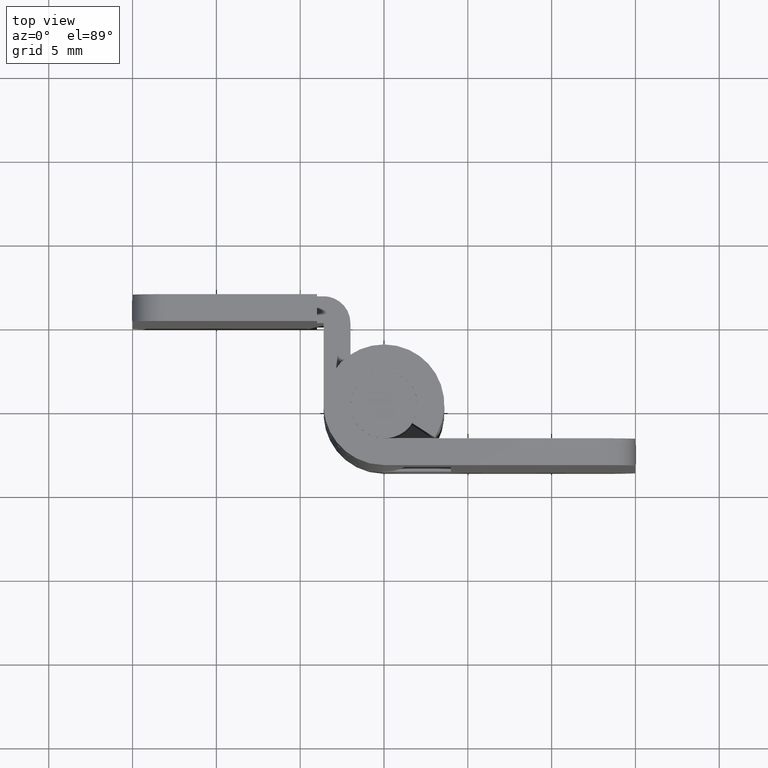
[diagram: clean part render]
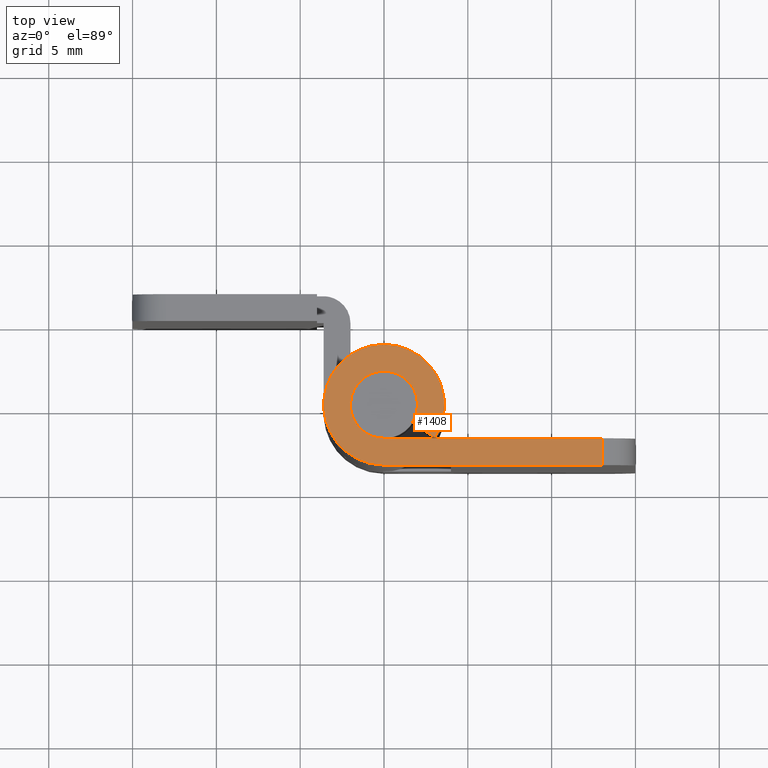
[diagram: same view with one face highlighted and labeled with its STEP entity id]
A machine part, top view. The second image highlights one B-rep face of the part: STEP entity #1408.
In plain terms, the highlighted face is a freeform B-spline surface patch.
Its self-contained STEP definition (entity closure, byte-faithful):
#987=CARTESIAN_POINT('',(13.000006999999901,-3.599998000000000,30.0));
#988=VERTEX_POINT('',#987);
#1009=CARTESIAN_POINT('',(13.000006999999901,-2.0,30.0));
#1010=VERTEX_POINT('',#1009);
#1024=CARTESIAN_POINT('',(13.000006999999901,-3.599998000000000,30.0));
#1025=CARTESIAN_POINT('',(13.000006999999901,-2.0,30.0));
#1026=QUASI_UNIFORM_CURVE('',1,(#1024,#1025),.UNSPECIFIED.,.F.,.U.);
#1027=EDGE_CURVE('',#988,#1010,#1026,.T.);
#1339=CARTESIAN_POINT('',(-4.428765128740398,-3.959562787377455,30.0));
#1340=CARTESIAN_POINT('',(13.829157242606650,-3.959562787377455,30.0));
#1341=CARTESIAN_POINT('',(-4.428765128740398,3.958018878716435,30.0));
#1342=CARTESIAN_POINT('',(13.829157242606650,3.958018878716435,30.0));
#1343=B_SPLINE_SURFACE_WITH_KNOTS('',1,1,((#1339,#1341),(#1340,#1342)),.UNSPECIFIED.,.F.,.F.,.U.,(2,2),(2,2),(0.0,18.257922371347050),(0.0,7.917581666093890),.UNSPECIFIED.);
#1344=CARTESIAN_POINT('',(-0.000000188495562,-3.600000000000000,30.0));
#1345=VERTEX_POINT('',#1344);
#1346=CARTESIAN_POINT('',(-0.000000188495562,-3.600000000000000,30.0));
#1347=CARTESIAN_POINT('',(13.000006999999901,-3.599998000000000,30.0));
#1348=QUASI_UNIFORM_CURVE('',1,(#1346,#1347),.UNSPECIFIED.,.F.,.U.);
#1349=EDGE_CURVE('',#1345,#988,#1348,.T.);
#1350=ORIENTED_EDGE('',*,*,#1349,.T.);
#1351=ORIENTED_EDGE('',*,*,#1027,.T.);
#1352=CARTESIAN_POINT('',(0.0,-2.0,30.0));
#1353=VERTEX_POINT('',#1352);
#1354=CARTESIAN_POINT('',(13.000006999999901,-2.0,30.0));
#1355=CARTESIAN_POINT('',(0.0,-2.0,30.0));
#1356=QUASI_UNIFORM_CURVE('',1,(#1354,#1355),.UNSPECIFIED.,.F.,.U.);
#1357=EDGE_CURVE('',#1010,#1353,#1356,.T.);
#1358=ORIENTED_EDGE('',*,*,#1357,.T.);
#1359=CARTESIAN_POINT('',(1.681186750152660,-1.083333333333342,30.0));
#1360=VERTEX_POINT('',#1359);
#1361=CARTESIAN_POINT('',(0.0,-2.0,30.0));
#1362=CARTESIAN_POINT('',(-1.554136556548025,-2.000000000000000,30.0));
#1363=CARTESIAN_POINT('',(-1.938025359003882,-0.494021971027477,30.0));
#1364=CARTESIAN_POINT('',(-2.321914161459738,1.011956057945045,30.0));
#1365=CARTESIAN_POINT('',(-0.957427107756332,1.755942292142126,30.0));
#1366=CARTESIAN_POINT('',(0.407059945947073,2.499928526339207,30.0));
#1367=CARTESIAN_POINT('',(1.465035332114961,1.361496043202038,30.0));
#1368=CARTESIAN_POINT('',(2.523010718282850,0.223063560064869,30.0));
#1369=CARTESIAN_POINT('',(1.681186750152662,-1.083333333333343,30.0));
#1377=(BOUNDED_CURVE()B_SPLINE_CURVE(2,(#1361,#1362,#1363,#1364,#1365,#1366,#1367,#1368,#1369),.UNSPECIFIED.,.F.,.U.)B_SPLINE_CURVE_WITH_KNOTS((3,2,2,2,3),(0.0,0.250000000000000,0.500000000000000,0.750000000000000,1.0),.UNSPECIFIED.)CURVE()GEOMETRIC_REPRESENTATION_ITEM()RATIONAL_B_SPLINE_CURVE((1.0,0.789623639943023,1.0,0.789623639943023,1.0,0.789623639943023,1.0,0.789623639943023,1.0))REPRESENTATION_ITEM(''));
#1378=EDGE_CURVE('',#1353,#1360,#1377,.T.);
#1379=ORIENTED_EDGE('',*,*,#1378,.T.);
#1380=CARTESIAN_POINT('',(3.026136150274790,-1.950000000000000,30.0));
#1381=VERTEX_POINT('',#1380);
#1382=CARTESIAN_POINT('',(1.681186750152660,-1.083333333333342,30.0));
#1383=CARTESIAN_POINT('',(3.026136150274790,-1.950000000000000,30.0));
#1384=QUASI_UNIFORM_CURVE('',1,(#1382,#1383),.UNSPECIFIED.,.F.,.U.);
#1385=EDGE_CURVE('',#1360,#1381,#1384,.T.);
#1386=ORIENTED_EDGE('',*,*,#1385,.T.);
#1387=CARTESIAN_POINT('',(-0.000000188495561,-3.599999999999995,30.0));
#1388=CARTESIAN_POINT('',(-2.797445952492526,-3.599999853526076,30.0));
#1389=CARTESIAN_POINT('',(-3.488445681127340,-0.889239410858521,30.0));
#1390=CARTESIAN_POINT('',(-4.179445409762153,1.821521031809033,30.0));
#1391=CARTESIAN_POINT('',(-1.723368711214574,3.160696170973512,30.0));
#1392=CARTESIAN_POINT('',(0.732707987333006,4.499871310137992,30.0));
#1393=CARTESIAN_POINT('',(2.637063629886417,2.450692843244595,30.0));
#1394=CARTESIAN_POINT('',(4.541419272439828,0.401514376351199,30.0));
#1395=CARTESIAN_POINT('',(3.026136150274799,-1.950000000000004,30.0));
#1403=(BOUNDED_CURVE()B_SPLINE_CURVE(2,(#1387,#1388,#1389,#1390,#1391,#1392,#1393,#1394,#1395),.UNSPECIFIED.,.F.,.U.)B_SPLINE_CURVE_WITH_KNOTS((3,2,2,2,3),(0.0,0.250000000000000,0.500000000000000,0.750000000000000,1.0),.UNSPECIFIED.)CURVE()GEOMETRIC_REPRESENTATION_ITEM()RATIONAL_B_SPLINE_CURVE((1.0,0.789623643958971,1.0,0.789623643958971,1.0,0.789623643958971,1.0,0.789623643958971,1.0))REPRESENTATION_ITEM(''));
#1404=EDGE_CURVE('',#1345,#1381,#1403,.T.);
#1405=ORIENTED_EDGE('',*,*,#1404,.F.);
#1406=EDGE_LOOP('',(#1350,#1351,#1358,#1379,#1386,#1405));
#1407=FACE_OUTER_BOUND('',#1406,.T.);
#1408=ADVANCED_FACE('',(#1407),#1343,.T.);